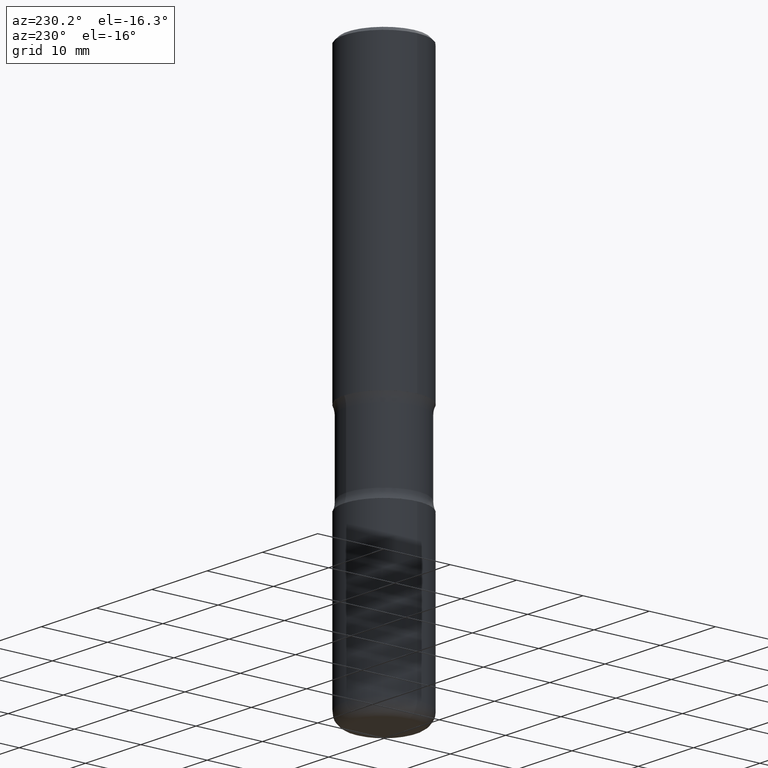
[diagram: clean part render]
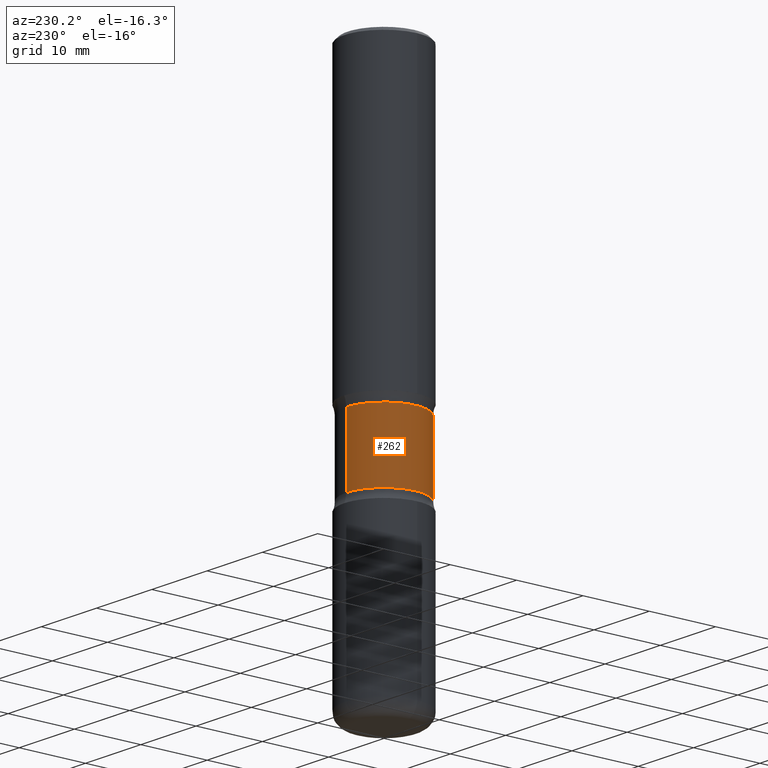
[diagram: same view with one face highlighted and labeled with its STEP entity id]
A machine part, auxiliary view. The second image highlights one B-rep face of the part: STEP entity #262.
In plain terms, the highlighted cylindrical surface (partial cylindrical patch) has radius 5.7023 mm, axis along (0, -0, -1).
Its self-contained STEP definition (entity closure, byte-faithful):
#2 = ORIENTED_EDGE ( 'NONE', *, *, #215, .T. ) ;
#24 = EDGE_LOOP ( 'NONE', ( #467, #78, #2, #155 ) ) ;
#28 = VERTEX_POINT ( 'NONE', #122 ) ;
#31 = CARTESIAN_POINT ( 'NONE',  ( 4.467622709432113906E-29, -6.086281597024630126E-15, -1.785102556756280157 ) ) ;
#66 = DIRECTION ( 'NONE',  ( 2.222787628876211005E-29, -3.810373458975038347E-15, -1.000000000000000000 ) ) ;
#72 = CIRCLE ( 'NONE', #338, 0.2244999999999999218 ) ;
#75 = CARTESIAN_POINT ( 'NONE',  ( 7.763121964877756720E-29, -1.173553154510475730E-14, -3.267700000000001381 ) ) ;
#76 = VERTEX_POINT ( 'NONE', #229 ) ;
#78 = ORIENTED_EDGE ( 'NONE', *, *, #292, .T. ) ;
#96 = CARTESIAN_POINT ( 'NONE',  ( 5.370507678029178581E-29, -7.634035811667759693E-15, -2.191297443243722665 ) ) ;
#101 = LINE ( 'NONE', #149, #136 ) ;
#113 = AXIS2_PLACEMENT_3D ( 'NONE', #96, #224, #312 ) ;
#122 = CARTESIAN_POINT ( 'NONE',  ( 1.567675121140621237E-15, 0.2244999999999924833, -2.191297443243723553 ) ) ;
#136 = VECTOR ( 'NONE', #329, 39.37007874015748143 ) ;
#141 = EDGE_CURVE ( 'NONE', #469, #28, #266, .T. ) ;
#149 = CARTESIAN_POINT ( 'NONE',  ( -1.540181800499631152E-15, -0.2245000000000117735, -3.267700000000000049 ) ) ;
#151 = CARTESIAN_POINT ( 'NONE',  ( 1.567675121140644508E-15, 0.2244999999999882645, -3.267700000000002269 ) ) ;
#155 = ORIENTED_EDGE ( 'NONE', *, *, #141, .F. ) ;
#173 = AXIS2_PLACEMENT_3D ( 'NONE', #75, #66, #284 ) ;
#215 = EDGE_CURVE ( 'NONE', #76, #28, #263, .T. ) ;
#224 = DIRECTION ( 'NONE',  ( 2.222787628876211005E-29, -3.810373458975038347E-15, -1.000000000000000000 ) ) ;
#229 = CARTESIAN_POINT ( 'NONE',  ( 1.567675121140610785E-15, 0.2244999999999938434, -1.785102556756280823 ) ) ;
#252 = EDGE_CURVE ( 'NONE', #347, #469, #101, .T. ) ;
#262 = ADVANCED_FACE ( 'NONE', ( #416 ), #408, .T. ) ;
#263 = LINE ( 'NONE', #151, #388 ) ;
#266 = CIRCLE ( 'NONE', #113, 0.2245000000000001161 ) ;
#284 = DIRECTION ( 'NONE',  ( 6.982962677686265922E-15, 1.000000000000000000, -4.867435178020957969E-15 ) ) ;
#292 = EDGE_CURVE ( 'NONE', #347, #76, #72, .T. ) ;
#305 = CARTESIAN_POINT ( 'NONE',  ( -1.580315713786620296E-15, -0.2245000000000077767, -2.191297443243721776 ) ) ;
#312 = DIRECTION ( 'NONE',  ( 6.982962677686265922E-15, 1.000000000000000000, -3.650576383515717294E-15 ) ) ;
#329 = DIRECTION ( 'NONE',  ( 2.222787628876211005E-29, -3.810373458975038347E-15, -1.000000000000000000 ) ) ;
#332 = DIRECTION ( 'NONE',  ( 2.222787628876211005E-29, -3.810373458975038347E-15, -1.000000000000000000 ) ) ;
#338 = AXIS2_PLACEMENT_3D ( 'NONE', #31, #497, #504 ) ;
#347 = VERTEX_POINT ( 'NONE', #451 ) ;
#388 = VECTOR ( 'NONE', #332, 39.37007874015748143 ) ;
#408 = CYLINDRICAL_SURFACE ( 'NONE', #173, 0.2245000000000000329 ) ;
#416 = FACE_OUTER_BOUND ( 'NONE', #24, .T. ) ;
#451 = CARTESIAN_POINT ( 'NONE',  ( -1.580315713786628776E-15, -0.2245000000000060003, -1.785102556756279268 ) ) ;
#467 = ORIENTED_EDGE ( 'NONE', *, *, #252, .F. ) ;
#469 = VERTEX_POINT ( 'NONE', #305 ) ;
#497 = DIRECTION ( 'NONE',  ( 2.222787628876211005E-29, -3.810373458975038347E-15, -1.000000000000000000 ) ) ;
#504 = DIRECTION ( 'NONE',  ( 6.982962677686265922E-15, 1.000000000000000000, -3.650576383515720449E-15 ) ) ;